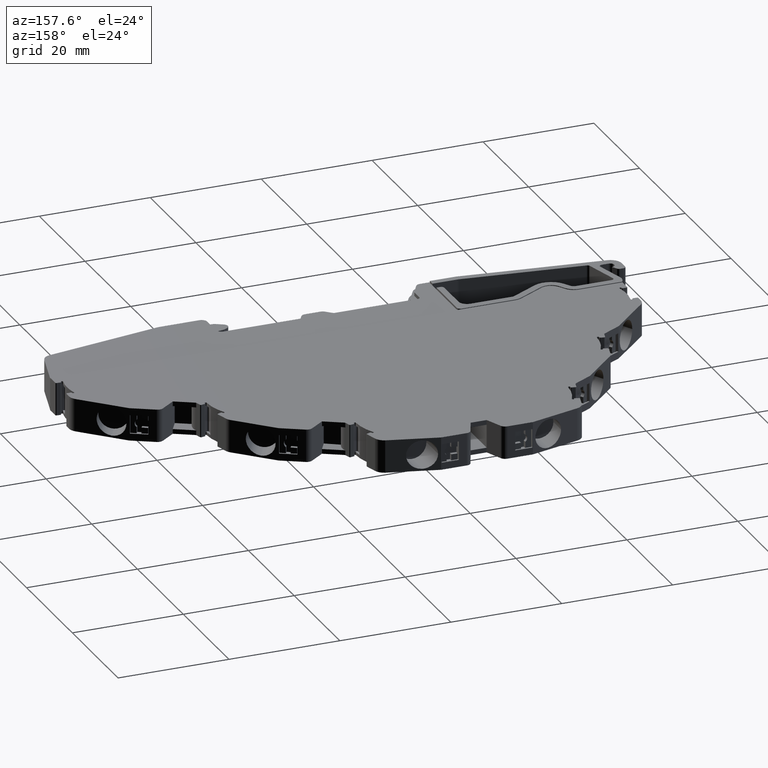
[diagram: clean part render]
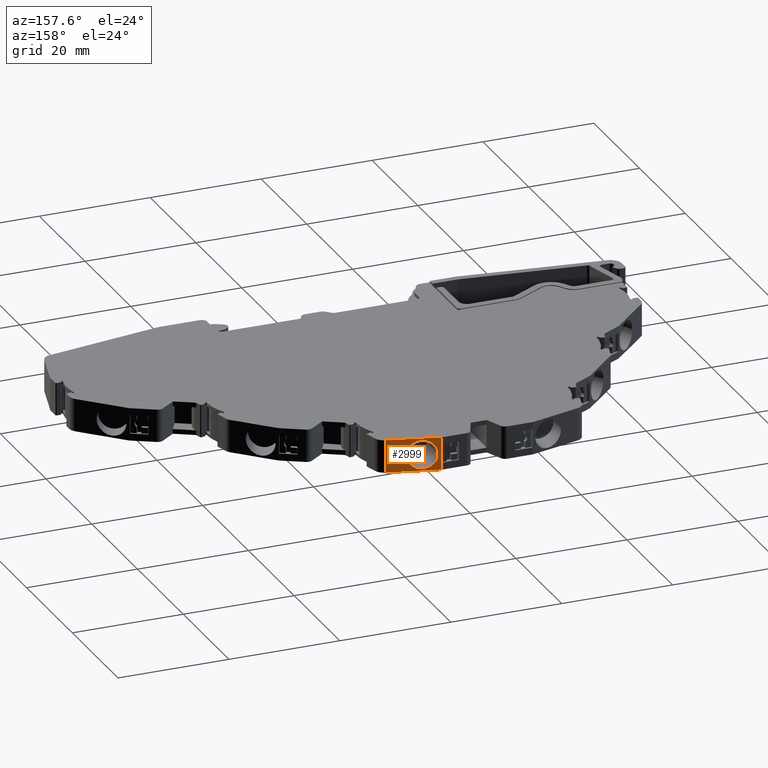
[diagram: same view with one face highlighted and labeled with its STEP entity id]
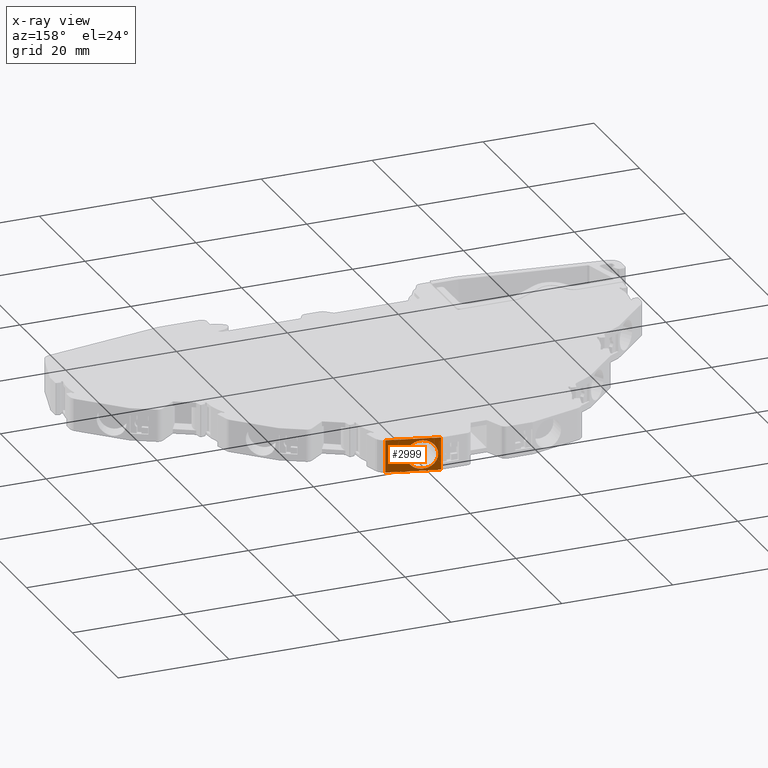
[diagram: x-ray of the same camera — body ghosted, the highlighted face saturated]
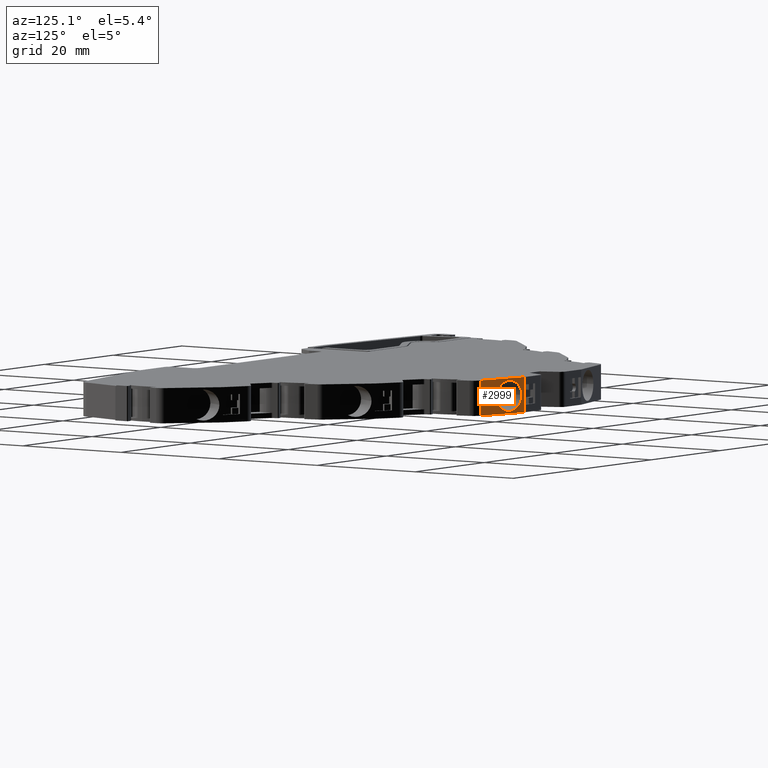
[diagram: same view with one face highlighted and labeled with its STEP entity id]
A machine part, auxiliary view. The second image highlights one B-rep face of the part: STEP entity #2999.
The next image is the same camera in x-ray: the body ghosted, the highlighted face saturated — about 0% of this face is hidden behind the body in this view.
A second angle (auxiliary view) of the same face is appended — the face is thin or edge-on in the first view.
In plain terms, the highlighted planar face has unit normal (0.2595, 0.9658, -0).
Its self-contained STEP definition (entity closure, byte-faithful):
#2999 = ADVANCED_FACE ( 'NONE', ( #13513, #13515 ), #13519, .T. ) ;
#3092 = EDGE_CURVE ( 'NONE', #7426, #7410, #8753, .T. ) ;
#3163 = EDGE_CURVE ( 'NONE', #7419, #7426, #8760, .T. ) ;
#3176 = EDGE_CURVE ( 'NONE', #7436, #7410, #8756, .T. ) ;
#4558 = ORIENTED_EDGE ( 'NONE', *, *, #3163, .F. ) ;
#4567 = ORIENTED_EDGE ( 'NONE', *, *, #3176, .T. ) ;
#4569 = ORIENTED_EDGE ( 'NONE', *, *, #3092, .F. ) ;
#4574 = ORIENTED_EDGE ( 'NONE', *, *, #11776, .T. ) ;
#4580 = ORIENTED_EDGE ( 'NONE', *, *, #11311, .F. ) ;
#4596 = ORIENTED_EDGE ( 'NONE', *, *, #10799, .F. ) ;
#4597 = ORIENTED_EDGE ( 'NONE', *, *, #10870, .F. ) ;
#4602 = ORIENTED_EDGE ( 'NONE', *, *, #11332, .T. ) ;
#4779 = EDGE_LOOP ( 'NONE', ( #4596, #4602, #4597, #4580 ) ) ;
#4855 = EDGE_LOOP ( 'NONE', ( #4558, #4574, #4567, #4569 ) ) ;
#7410 = VERTEX_POINT ( 'NONE', #18145 ) ;
#7419 = VERTEX_POINT ( 'NONE', #18158 ) ;
#7426 = VERTEX_POINT ( 'NONE', #18177 ) ;
#7436 = VERTEX_POINT ( 'NONE', #18171 ) ;
#7648 = VERTEX_POINT ( 'NONE', #18420 ) ;
#7649 = VERTEX_POINT ( 'NONE', #18402 ) ;
#7768 = VERTEX_POINT ( 'NONE', #18458 ) ;
#7788 = VERTEX_POINT ( 'NONE', #18519 ) ;
#8753 =( BOUNDED_CURVE ( )  B_SPLINE_CURVE ( 3, ( #13901, #13911, #13913, #13934 ),
 .UNSPECIFIED., .F., .T. ) 
 B_SPLINE_CURVE_WITH_KNOTS ( ( 4, 4 ),
 ( 1.570796326794896600, 3.139669575481386600 ),
 .UNSPECIFIED. ) 
 CURVE ( )  GEOMETRIC_REPRESENTATION_ITEM ( )  RATIONAL_B_SPLINE_CURVE ( ( 1.000000000000000000, 0.8051909099913461300, 0.8051909099913461300, 1.000000000000000000 ) ) 
 REPRESENTATION_ITEM ( '' )  );
#8756 =( BOUNDED_CURVE ( )  B_SPLINE_CURVE ( 3, ( #14166, #14188, #14180, #14189 ),
 .UNSPECIFIED., .F., .T. ) 
 B_SPLINE_CURVE_WITH_KNOTS ( ( 4, 4 ),
 ( 1.570796326794896600, 3.139669575481386600 ),
 .UNSPECIFIED. ) 
 CURVE ( )  GEOMETRIC_REPRESENTATION_ITEM ( )  RATIONAL_B_SPLINE_CURVE ( ( 1.000000000000000000, 0.8051909099913461300, 0.8051909099913461300, 1.000000000000000000 ) ) 
 REPRESENTATION_ITEM ( '' )  );
#8760 =( BOUNDED_CURVE ( )  B_SPLINE_CURVE ( 3, ( #14151, #14131, #14127, #14123 ),
 .UNSPECIFIED., .F., .T. ) 
 B_SPLINE_CURVE_WITH_KNOTS ( ( 4, 4 ),
 ( 0.001923078108406625000, 1.570796326794896600 ),
 .UNSPECIFIED. ) 
 CURVE ( )  GEOMETRIC_REPRESENTATION_ITEM ( )  RATIONAL_B_SPLINE_CURVE ( ( 1.000000000000000000, 0.8051909099913461300, 0.8051909099913461300, 1.000000000000000000 ) ) 
 REPRESENTATION_ITEM ( '' )  );
#8922 = AXIS2_PLACEMENT_3D ( 'NONE', #13520, #13468, #13541 ) ;
#10799 = EDGE_CURVE ( 'NONE', #7648, #7649, #19353, .T. ) ;
#10870 = EDGE_CURVE ( 'NONE', #7768, #7788, #21743, .T. ) ;
#11311 = EDGE_CURVE ( 'NONE', #7649, #7768, #23069, .T. ) ;
#11332 = EDGE_CURVE ( 'NONE', #7648, #7788, #23114, .T. ) ;
#11776 = EDGE_CURVE ( 'NONE', #7419, #7436, #22461, .T. ) ;
#13468 = DIRECTION ( 'NONE',  ( 0.2594565113460507400, 0.9657547922325504500, -0.0000000000000000000 ) ) ;
#13513 = FACE_OUTER_BOUND ( 'NONE', #4779, .T. ) ;
#13515 = FACE_BOUND ( 'NONE', #4855, .T. ) ;
#13519 = PLANE ( 'NONE',  #8922 ) ;
#13520 = CARTESIAN_POINT ( 'NONE',  ( 286.3679425688856700, 58.17040033766235000, -112.9851010389220100 ) ) ;
#13541 = DIRECTION ( 'NONE',  ( -0.9657547922325503400, 0.2594565113460506900, 0.0000000000000000000 ) ) ;
#13901 = CARTESIAN_POINT ( 'NONE',  ( 262.3427173349974700, 64.62493846019920300, 5.500000000000000000 ) ) ;
#13911 = CARTESIAN_POINT ( 'NONE',  ( 263.8634407565155000, 64.21638589919435000, 5.500000000000000000 ) ) ;
#13913 = CARTESIAN_POINT ( 'NONE',  ( 264.9397880591824300, 63.92721796713458800, 4.425720609526878800 ) ) ;
#13934 = CARTESIAN_POINT ( 'NONE',  ( 264.9427125273007300, 63.92643228913265600, 2.904999999999998000 ) ) ;
#14123 = CARTESIAN_POINT ( 'NONE',  ( 262.3427173349974700, 64.62493846019920300, 5.500000000000000000 ) ) ;
#14127 = CARTESIAN_POINT ( 'NONE',  ( 260.8219939134794500, 65.03349102120407100, 5.500000000000000000 ) ) ;
#14131 = CARTESIAN_POINT ( 'NONE',  ( 259.7456466108125100, 65.32265895326382600, 4.425720609526878800 ) ) ;
#14151 = CARTESIAN_POINT ( 'NONE',  ( 259.7427221426942200, 65.32344463126575800, 2.904999999999998000 ) ) ;
#14166 = CARTESIAN_POINT ( 'NONE',  ( 262.3427173349974700, 64.62493846019920300, 0.3099999999999960600 ) ) ;
#14180 = CARTESIAN_POINT ( 'NONE',  ( 264.9397880591824300, 63.92721796713458800, 1.384279390473116500 ) ) ;
#14188 = CARTESIAN_POINT ( 'NONE',  ( 263.8634407565155000, 64.21638589919435000, 0.3099999999999963900 ) ) ;
#14189 = CARTESIAN_POINT ( 'NONE',  ( 264.9427125273007300, 63.92643228913265600, 2.904999999999998000 ) ) ;
#18145 = CARTESIAN_POINT ( 'NONE',  ( 264.9427125273007300, 63.92643228913265600, 2.904999999999998000 ) ) ;
#18158 = CARTESIAN_POINT ( 'NONE',  ( 259.7427221426942200, 65.32344463126575800, 2.904999999999998000 ) ) ;
#18171 = CARTESIAN_POINT ( 'NONE',  ( 262.3427173349974700, 64.62493846019920300, 0.3099999999999960600 ) ) ;
#18177 = CARTESIAN_POINT ( 'NONE',  ( 262.3427173349974700, 64.62493846019920300, 5.500000000000000000 ) ) ;
#18402 = CARTESIAN_POINT ( 'NONE',  ( 268.3193315097764800, 63.01928092070638600, -0.04500000000000337100 ) ) ;
#18420 = CARTESIAN_POINT ( 'NONE',  ( 259.2576819100440300, 65.45375394750018900, -0.04500000000000337100 ) ) ;
#18458 = CARTESIAN_POINT ( 'NONE',  ( 268.3193315097764800, 63.01928092070638600, 5.854999999999998600 ) ) ;
#18519 = CARTESIAN_POINT ( 'NONE',  ( 259.2576819100440300, 65.45375394750018900, 5.854999999999998600 ) ) ;
#19353 = LINE ( 'NONE', #19360, #20440 ) ;
#19360 = CARTESIAN_POINT ( 'NONE',  ( 286.3679425688856700, 58.17040033766235000, -0.04500000000000337100 ) ) ;
#20055 = DIRECTION ( 'NONE',  ( 0.9657547922325504500, -0.2594565113460507400, 0.0000000000000000000 ) ) ;
#20440 = VECTOR ( 'NONE', #20055, 999.9999999999998900 ) ;
#20493 = VECTOR ( 'NONE', #21750, 999.9999999999998900 ) ;
#21099 = VECTOR ( 'NONE', #23121, 1000.000000000000000 ) ;
#21106 = VECTOR ( 'NONE', #23071, 1000.000000000000000 ) ;
#21743 = LINE ( 'NONE', #21748, #20493 ) ;
#21748 = CARTESIAN_POINT ( 'NONE',  ( 287.3612492383225600, 57.90354182945542000, 5.854999999999999500 ) ) ;
#21750 = DIRECTION ( 'NONE',  ( -0.9657547922325504500, 0.2594565113460507400, 0.0000000000000000000 ) ) ;
#22461 =( BOUNDED_CURVE ( )  B_SPLINE_CURVE ( 3, ( #24829, #24812, #24838, #24841 ),
 .UNSPECIFIED., .F., .F. ) 
 B_SPLINE_CURVE_WITH_KNOTS ( ( 4, 4 ),
 ( 0.001923078108406625000, 1.570796326794896600 ),
 .UNSPECIFIED. ) 
 CURVE ( )  GEOMETRIC_REPRESENTATION_ITEM ( )  RATIONAL_B_SPLINE_CURVE ( ( 1.000000000000000000, 0.8051909099913461300, 0.8051909099913461300, 1.000000000000000000 ) ) 
 REPRESENTATION_ITEM ( '' )  );
#23069 = LINE ( 'NONE', #23072, #21106 ) ;
#23071 = DIRECTION ( 'NONE',  ( 0.0000000000000000000, 0.0000000000000000000, 1.000000000000000000 ) ) ;
#23072 = CARTESIAN_POINT ( 'NONE',  ( 268.3193315097764800, 63.01928092070638600, -112.9851010389220100 ) ) ;
#23106 = CARTESIAN_POINT ( 'NONE',  ( 259.2576819100440300, 65.45375394750018900, -112.9851010389220100 ) ) ;
#23114 = LINE ( 'NONE', #23106, #21099 ) ;
#23121 = DIRECTION ( 'NONE',  ( 0.0000000000000000000, 0.0000000000000000000, 1.000000000000000000 ) ) ;
#24812 = CARTESIAN_POINT ( 'NONE',  ( 259.7456466108125100, 65.32265895326382600, 1.384279390473116500 ) ) ;
#24829 = CARTESIAN_POINT ( 'NONE',  ( 259.7427221426942200, 65.32344463126575800, 2.904999999999998000 ) ) ;
#24838 = CARTESIAN_POINT ( 'NONE',  ( 260.8219939134794500, 65.03349102120407100, 0.3099999999999965600 ) ) ;
#24841 = CARTESIAN_POINT ( 'NONE',  ( 262.3427173349974700, 64.62493846019920300, 0.3099999999999960600 ) ) ;